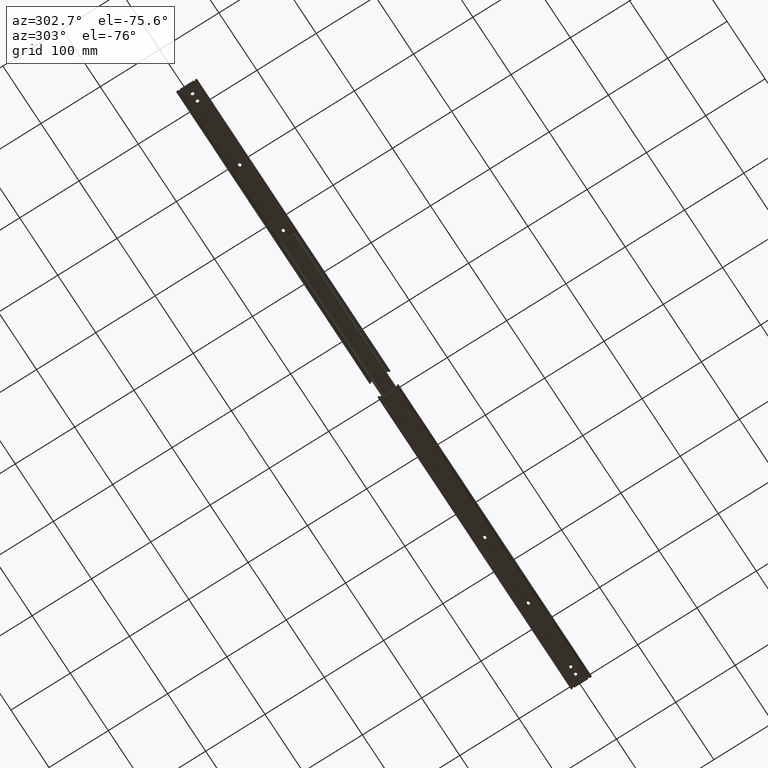
[diagram: clean part render]
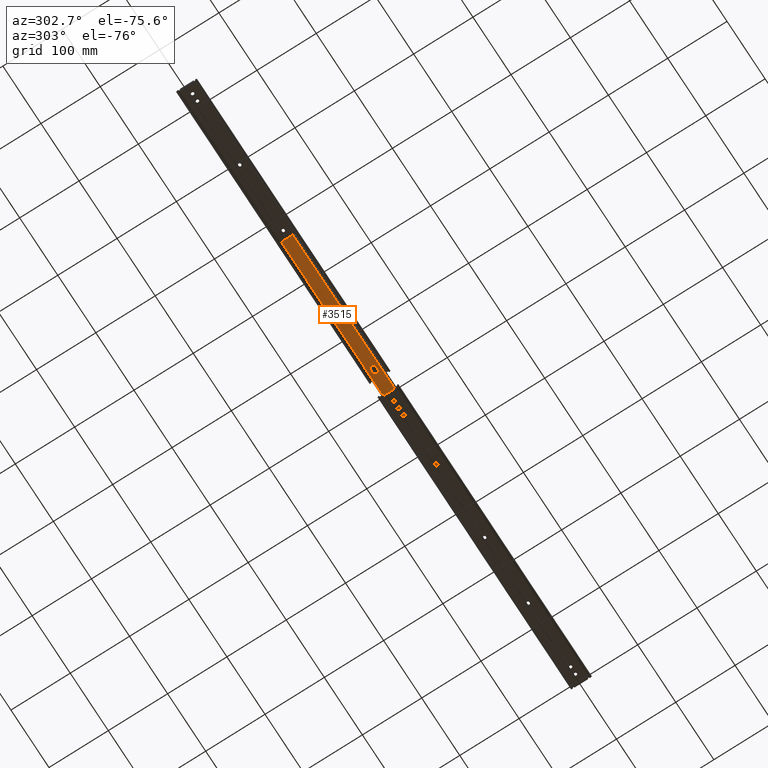
[diagram: same view with one face highlighted and labeled with its STEP entity id]
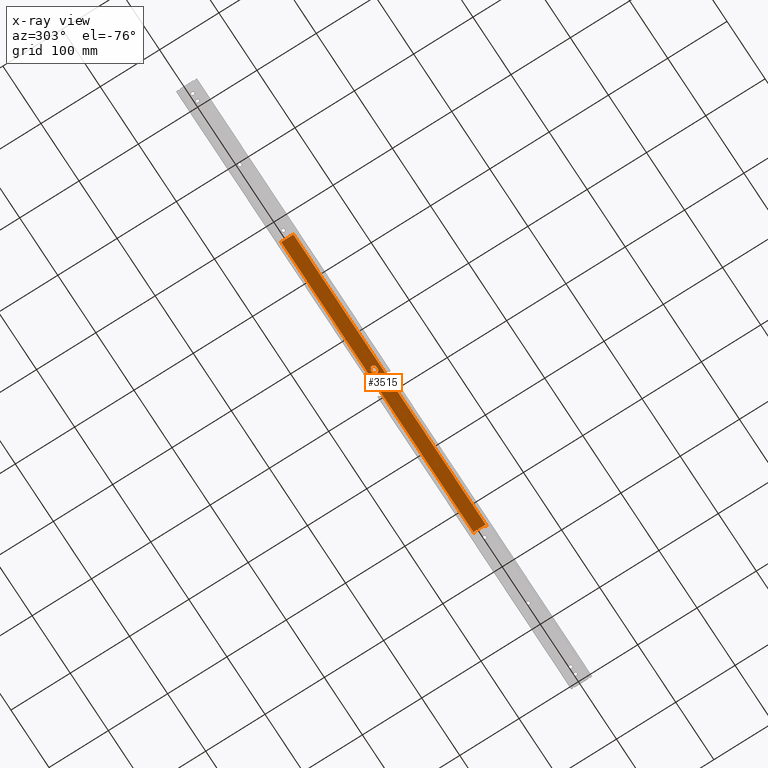
[diagram: x-ray of the same camera — body ghosted, the highlighted face saturated]
A machine part, auxiliary view. The second image highlights one B-rep face of the part: STEP entity #3515.
The next image is the same camera in x-ray: the body ghosted, the highlighted face saturated — about 0% of this face is hidden behind the body in this view.
In plain terms, the highlighted planar face has unit normal (0, 0, 1).
Its self-contained STEP definition (entity closure, byte-faithful):
#1 = VECTOR ( 'NONE', #1053, 1000.000000000000000 ) ;
#10 = VERTEX_POINT ( 'NONE', #81 ) ;
#81 = CARTESIAN_POINT ( 'NONE',  ( -8.549999999999977600, 1.663909350230895200E-013, -11.20000000000026800 ) ) ;
#96 = CARTESIAN_POINT ( 'NONE',  ( 261.2999999999999000, -9.699999999999890900, -11.20000000000026800 ) ) ;
#104 = CARTESIAN_POINT ( 'NONE',  ( 261.2999999999999000, 8.200000000000114800, -11.20000000000026800 ) ) ;
#116 = ORIENTED_EDGE ( 'NONE', *, *, #2732, .T. ) ;
#135 = EDGE_CURVE ( 'NONE', #487, #10, #1726, .T. ) ;
#147 = ORIENTED_EDGE ( 'NONE', *, *, #135, .T. ) ;
#148 = DIRECTION ( 'NONE',  ( 1.000000000000000000, 0.0000000000000000000, 0.0000000000000000000 ) ) ;
#168 = CARTESIAN_POINT ( 'NONE',  ( 261.2999999999999000, 1.155339569655347100E-013, -11.20000000000026800 ) ) ;
#183 = CARTESIAN_POINT ( 'NONE',  ( -13.29999999999997900, -4.749999999999865000, -11.20000000000026800 ) ) ;
#215 = VERTEX_POINT ( 'NONE', #663 ) ;
#224 = CARTESIAN_POINT ( 'NONE',  ( 262.8999999999999800, -10.32509259386179300, -11.20000000000026800 ) ) ;
#245 = CARTESIAN_POINT ( 'NONE',  ( 261.2999999999999000, -8.199999999999883800, -11.20000000000026800 ) ) ;
#288 = CARTESIAN_POINT ( 'NONE',  ( 262.8999999999999800, 9.700000000000104100, -11.20000000000026800 ) ) ;
#305 = AXIS2_PLACEMENT_3D ( 'NONE', #4531, #3414, #1117 ) ;
#328 = VERTEX_POINT ( 'NONE', #3649 ) ;
#403 = LINE ( 'NONE', #4474, #1511 ) ;
#487 = VERTEX_POINT ( 'NONE', #183 ) ;
#498 = VERTEX_POINT ( 'NONE', #104 ) ;
#543 = DIRECTION ( 'NONE',  ( 0.0000000000000000000, -1.000000000000000000, 0.0000000000000000000 ) ) ;
#604 = DIRECTION ( 'NONE',  ( -1.000000000000000000, -0.0000000000000000000, -0.0000000000000000000 ) ) ;
#663 = CARTESIAN_POINT ( 'NONE',  ( -243.5000000000000000, 10.32509259386202600, -11.20000000000026800 ) ) ;
#710 = CARTESIAN_POINT ( 'NONE',  ( 262.8999999999999800, 1.155339569655347100E-013, -11.20000000000026800 ) ) ;
#833 = LINE ( 'NONE', #1079, #4515 ) ;
#838 = VERTEX_POINT ( 'NONE', #245 ) ;
#900 = EDGE_CURVE ( 'NONE', #328, #215, #833, .T. ) ;
#903 = VERTEX_POINT ( 'NONE', #1667 ) ;
#994 = ORIENTED_EDGE ( 'NONE', *, *, #4235, .T. ) ;
#1032 = CARTESIAN_POINT ( 'NONE',  ( -243.5000000000000000, -10.32509259386179300, -11.20000000000026800 ) ) ;
#1039 = VECTOR ( 'NONE', #543, 1000.000000000000000 ) ;
#1053 = DIRECTION ( 'NONE',  ( -1.000000000000000000, 0.0000000000000000000, 0.0000000000000000000 ) ) ;
#1079 = CARTESIAN_POINT ( 'NONE',  ( 262.8999999999999800, 10.32509259386202600, -11.20000000000026800 ) ) ;
#1087 = DIRECTION ( 'NONE',  ( 1.000000000000000000, 0.0000000000000000000, -0.0000000000000000000 ) ) ;
#1117 = DIRECTION ( 'NONE',  ( 1.000000000000000000, 0.0000000000000000000, 0.0000000000000000000 ) ) ;
#1242 = VECTOR ( 'NONE', #3877, 1000.000000000000000 ) ;
#1342 = CARTESIAN_POINT ( 'NONE',  ( 261.2999999999999000, 1.155339569655347100E-013, -11.20000000000026800 ) ) ;
#1416 = LINE ( 'NONE', #2941, #3272 ) ;
#1458 = VECTOR ( 'NONE', #3587, 1000.000000000000000 ) ;
#1511 = VECTOR ( 'NONE', #2275, 1000.000000000000000 ) ;
#1536 = FACE_OUTER_BOUND ( 'NONE', #3495, .T. ) ;
#1566 = VERTEX_POINT ( 'NONE', #4441 ) ;
#1627 = AXIS2_PLACEMENT_3D ( 'NONE', #4572, #2373, #148 ) ;
#1667 = CARTESIAN_POINT ( 'NONE',  ( -13.29999999999997900, 4.750000000000135000, -11.20000000000026800 ) ) ;
#1683 = VECTOR ( 'NONE', #604, 1000.000000000000000 ) ;
#1688 = CARTESIAN_POINT ( 'NONE',  ( -243.5000000000000000, 1.155339569655347100E-013, -11.20000000000026800 ) ) ;
#1709 = VERTEX_POINT ( 'NONE', #4037 ) ;
#1726 = CIRCLE ( 'NONE', #2698, 4.750000000000000900 ) ;
#1746 = ORIENTED_EDGE ( 'NONE', *, *, #3603, .T. ) ;
#1775 = EDGE_CURVE ( 'NONE', #10, #903, #3862, .T. ) ;
#1790 = VERTEX_POINT ( 'NONE', #4582 ) ;
#1836 = CARTESIAN_POINT ( 'NONE',  ( -13.29999999999997900, 1.663909350230895200E-013, -11.20000000000026800 ) ) ;
#1900 = ORIENTED_EDGE ( 'NONE', *, *, #1775, .T. ) ;
#1917 = VERTEX_POINT ( 'NONE', #1032 ) ;
#1949 = EDGE_CURVE ( 'NONE', #1964, #3234, #3809, .T. ) ;
#1964 = VERTEX_POINT ( 'NONE', #288 ) ;
#2059 = ORIENTED_EDGE ( 'NONE', *, *, #2325, .T. ) ;
#2062 = EDGE_CURVE ( 'NONE', #1964, #328, #4502, .T. ) ;
#2108 = ORIENTED_EDGE ( 'NONE', *, *, #2449, .T. ) ;
#2138 = ORIENTED_EDGE ( 'NONE', *, *, #900, .F. ) ;
#2216 = LINE ( 'NONE', #1688, #1242 ) ;
#2263 = ORIENTED_EDGE ( 'NONE', *, *, #4076, .F. ) ;
#2275 = DIRECTION ( 'NONE',  ( 0.0000000000000000000, -1.000000000000000000, 0.0000000000000000000 ) ) ;
#2284 = DIRECTION ( 'NONE',  ( -1.000000000000000000, -2.710505431213730500E-016, 0.0000000000000000000 ) ) ;
#2325 = EDGE_CURVE ( 'NONE', #4613, #1709, #4211, .T. ) ;
#2347 = ORIENTED_EDGE ( 'NONE', *, *, #1949, .T. ) ;
#2373 = DIRECTION ( 'NONE',  ( 0.0000000000000000000, 0.0000000000000000000, 1.000000000000000000 ) ) ;
#2449 = EDGE_CURVE ( 'NONE', #3234, #498, #3525, .T. ) ;
#2454 = EDGE_CURVE ( 'NONE', #1790, #1917, #4498, .T. ) ;
#2548 = PLANE ( 'NONE',  #3733 ) ;
#2549 = VECTOR ( 'NONE', #2827, 1000.000000000000000 ) ;
#2614 = DIRECTION ( 'NONE',  ( 1.000000000000000000, 1.084202172485473700E-015, -0.0000000000000000000 ) ) ;
#2698 = AXIS2_PLACEMENT_3D ( 'NONE', #1836, #4430, #2989 ) ;
#2732 = EDGE_CURVE ( 'NONE', #838, #2824, #403, .T. ) ;
#2774 = ORIENTED_EDGE ( 'NONE', *, *, #2062, .F. ) ;
#2804 = VECTOR ( 'NONE', #2284, 1000.000000000000000 ) ;
#2824 = VERTEX_POINT ( 'NONE', #96 ) ;
#2827 = DIRECTION ( 'NONE',  ( 0.0000000000000000000, -1.000000000000000000, 0.0000000000000000000 ) ) ;
#2836 = ORIENTED_EDGE ( 'NONE', *, *, #2454, .T. ) ;
#2941 = CARTESIAN_POINT ( 'NONE',  ( 262.8999999999999800, -4.749999999999790400, -11.20000000000026800 ) ) ;
#2976 = CARTESIAN_POINT ( 'NONE',  ( 262.8999999999999800, -9.699999999999889200, -11.20000000000026800 ) ) ;
#2989 = DIRECTION ( 'NONE',  ( 1.000000000000000000, 0.0000000000000000000, 0.0000000000000000000 ) ) ;
#3038 = LINE ( 'NONE', #4521, #3873 ) ;
#3042 = VECTOR ( 'NONE', #2614, 1000.000000000000000 ) ;
#3074 = DIRECTION ( 'NONE',  ( 0.0000000000000000000, 1.000000000000000000, 0.0000000000000000000 ) ) ;
#3218 = ORIENTED_EDGE ( 'NONE', *, *, #3527, .T. ) ;
#3234 = VERTEX_POINT ( 'NONE', #4212 ) ;
#3269 = CARTESIAN_POINT ( 'NONE',  ( 262.8999999999999800, 9.700000000000107600, -11.20000000000026800 ) ) ;
#3272 = VECTOR ( 'NONE', #3318, 1000.000000000000000 ) ;
#3273 = EDGE_CURVE ( 'NONE', #498, #838, #3962, .T. ) ;
#3300 = DIRECTION ( 'NONE',  ( 0.0000000000000000000, 0.0000000000000000000, 1.000000000000000000 ) ) ;
#3318 = DIRECTION ( 'NONE',  ( 1.000000000000000000, 2.710505431213730500E-016, -0.0000000000000000000 ) ) ;
#3394 = ORIENTED_EDGE ( 'NONE', *, *, #3684, .T. ) ;
#3414 = DIRECTION ( 'NONE',  ( 0.0000000000000000000, 0.0000000000000000000, 1.000000000000000000 ) ) ;
#3495 = EDGE_LOOP ( 'NONE', ( #2108, #4336, #116, #1746, #2263, #2836, #994, #2138, #2774, #2347 ) ) ;
#3515 = ADVANCED_FACE ( 'NONE', ( #4344, #1536 ), #2548, .F. ) ;
#3525 = LINE ( 'NONE', #1342, #2549 ) ;
#3527 = EDGE_CURVE ( 'NONE', #1709, #487, #1416, .T. ) ;
#3587 = DIRECTION ( 'NONE',  ( 0.0000000000000000000, 1.000000000000000000, 0.0000000000000000000 ) ) ;
#3603 = EDGE_CURVE ( 'NONE', #2824, #1566, #3996, .T. ) ;
#3649 = CARTESIAN_POINT ( 'NONE',  ( 262.8999999999999800, 10.32509259386202600, -11.20000000000026800 ) ) ;
#3684 = EDGE_CURVE ( 'NONE', #903, #4613, #3876, .T. ) ;
#3733 = AXIS2_PLACEMENT_3D ( 'NONE', #710, #3300, #1087 ) ;
#3750 = CARTESIAN_POINT ( 'NONE',  ( 262.8999999999999800, 4.750000000000209600, -11.20000000000026800 ) ) ;
#3809 = LINE ( 'NONE', #3269, #1 ) ;
#3862 = CIRCLE ( 'NONE', #305, 4.750000000000000900 ) ;
#3873 = VECTOR ( 'NONE', #3074, 1000.000000000000000 ) ;
#3876 = LINE ( 'NONE', #3750, #2804 ) ;
#3877 = DIRECTION ( 'NONE',  ( 0.0000000000000000000, 1.000000000000000000, 0.0000000000000000000 ) ) ;
#3943 = CARTESIAN_POINT ( 'NONE',  ( 262.8999999999999800, 1.155339569655347100E-013, -11.20000000000026800 ) ) ;
#3962 = LINE ( 'NONE', #168, #1039 ) ;
#3996 = LINE ( 'NONE', #2976, #3042 ) ;
#4037 = CARTESIAN_POINT ( 'NONE',  ( -16.50000000000001400, -4.749999999999865000, -11.20000000000026800 ) ) ;
#4076 = EDGE_CURVE ( 'NONE', #1790, #1566, #3038, .T. ) ;
#4077 = EDGE_LOOP ( 'NONE', ( #3394, #2059, #3218, #147, #1900 ) ) ;
#4211 = CIRCLE ( 'NONE', #1627, 4.750000000000000900 ) ;
#4212 = CARTESIAN_POINT ( 'NONE',  ( 261.2999999999999000, 9.700000000000107600, -11.20000000000026800 ) ) ;
#4235 = EDGE_CURVE ( 'NONE', #1917, #215, #2216, .T. ) ;
#4336 = ORIENTED_EDGE ( 'NONE', *, *, #3273, .T. ) ;
#4342 = DIRECTION ( 'NONE',  ( -1.000000000000000000, -0.0000000000000000000, -0.0000000000000000000 ) ) ;
#4344 = FACE_BOUND ( 'NONE', #4077, .T. ) ;
#4367 = CARTESIAN_POINT ( 'NONE',  ( -16.50000000000001400, 4.750000000000134100, -11.20000000000026800 ) ) ;
#4430 = DIRECTION ( 'NONE',  ( 0.0000000000000000000, 0.0000000000000000000, 1.000000000000000000 ) ) ;
#4441 = CARTESIAN_POINT ( 'NONE',  ( 262.8999999999999800, -9.699999999999889200, -11.20000000000026800 ) ) ;
#4474 = CARTESIAN_POINT ( 'NONE',  ( 261.2999999999999000, 1.155339569655347100E-013, -11.20000000000026800 ) ) ;
#4498 = LINE ( 'NONE', #224, #1683 ) ;
#4502 = LINE ( 'NONE', #3943, #1458 ) ;
#4515 = VECTOR ( 'NONE', #4342, 1000.000000000000000 ) ;
#4521 = CARTESIAN_POINT ( 'NONE',  ( 262.8999999999999800, 1.155339569655347100E-013, -11.20000000000026800 ) ) ;
#4531 = CARTESIAN_POINT ( 'NONE',  ( -13.29999999999997900, 1.663909350230895200E-013, -11.20000000000026800 ) ) ;
#4572 = CARTESIAN_POINT ( 'NONE',  ( -16.50000000000001400, 1.658031045594988100E-013, -11.20000000000026800 ) ) ;
#4582 = CARTESIAN_POINT ( 'NONE',  ( 262.8999999999999800, -10.32509259386179300, -11.20000000000026800 ) ) ;
#4613 = VERTEX_POINT ( 'NONE', #4367 ) ;